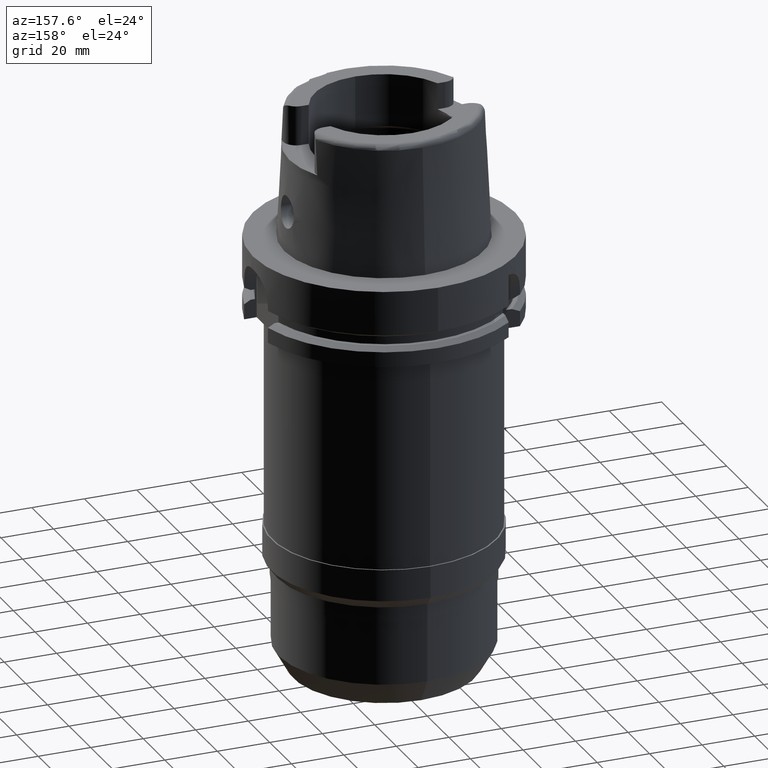
[diagram: clean part render]
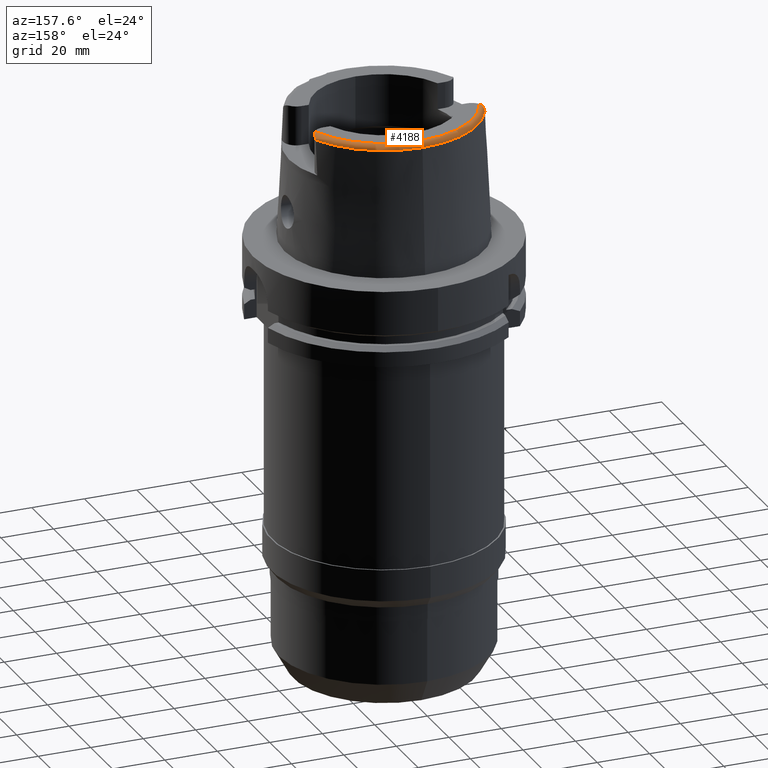
[diagram: same view with one face highlighted and labeled with its STEP entity id]
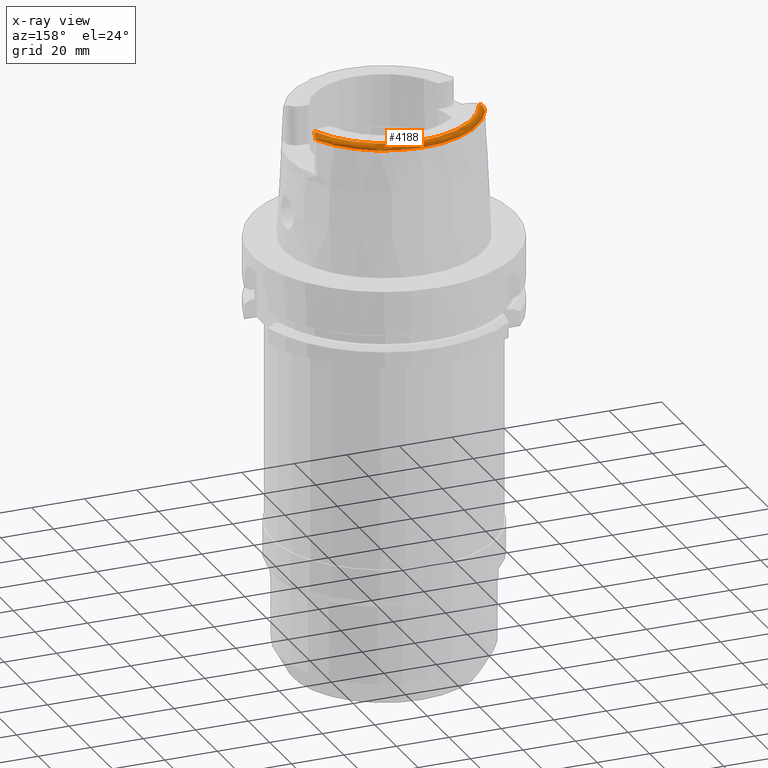
[diagram: x-ray of the same camera — body ghosted, the highlighted face saturated]
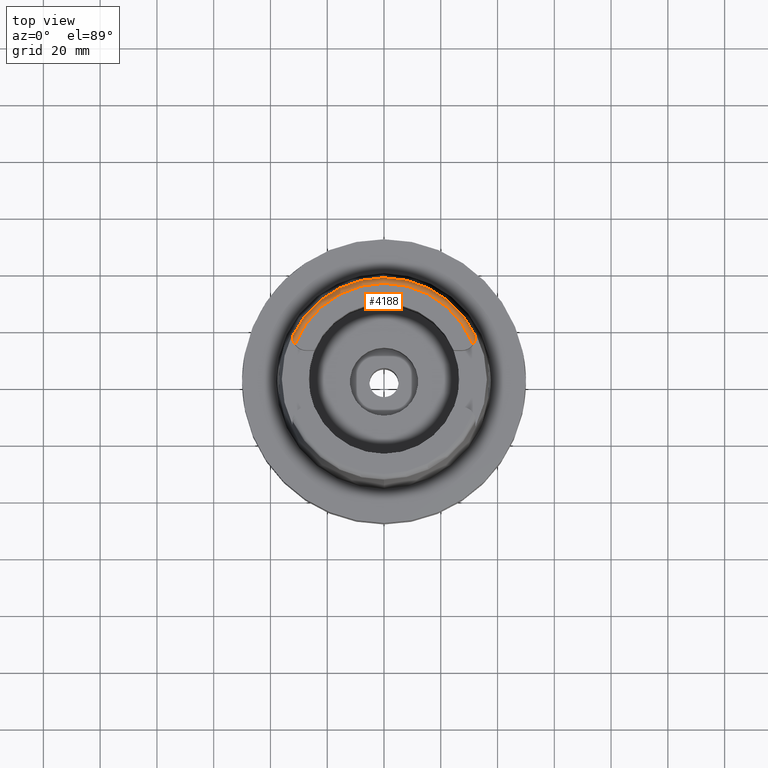
[diagram: same view with one face highlighted and labeled with its STEP entity id]
A machine part, auxiliary view. The second image highlights one B-rep face of the part: STEP entity #4188.
The next image is the same camera in x-ray: the body ghosted, the highlighted face saturated — about 0% of this face is hidden behind the body in this view.
A second angle (top view) of the same face is appended — the face is thin or edge-on in the first view.
In plain terms, the highlighted toroidal blend (fillet) surface has major radius 33.5974 mm and minor (blend) radius 2 mm.
Its self-contained STEP definition (entity closure, byte-faithful):
#26=CARTESIAN_POINT('',(0.E0,0.E0,5.E1));
#27=DIRECTION('',(0.E0,0.E0,-1.E0));
#28=DIRECTION('',(-9.332215253018E-1,3.593015233942E-1,0.E0));
#29=AXIS2_PLACEMENT_3D('',#26,#27,#28);
#2197=CARTESIAN_POINT('',(-3.135385269249E1,1.207161079257E1,5.E1));
#2198=CARTESIAN_POINT('',(-3.142527373241E1,1.217256594150E1,5.E1));
#2199=CARTESIAN_POINT('',(-3.156732839831E1,1.238900202558E1,4.998464011320E1));
#2200=CARTESIAN_POINT('',(-3.177577836674E1,1.277577168277E1,4.990203400659E1));
#2201=CARTESIAN_POINT('',(-3.194757711255E1,1.318051237673E1,4.976413906340E1));
#2202=CARTESIAN_POINT('',(-3.207547543607E1,1.357688175646E1,4.958506792855E1));
#2203=CARTESIAN_POINT('',(-3.215905840179E1,1.393206367770E1,4.938753791230E1));
#2204=CARTESIAN_POINT('',(-3.221007456356E1,1.424469792294E1,4.918012810564E1));
#2205=CARTESIAN_POINT('',(-3.223728010072E1,1.451082977256E1,4.896941221858E1));
#2206=CARTESIAN_POINT('',(-3.224870812954E1,1.473148457917E1,4.875544518115E1));
#2207=CARTESIAN_POINT('',(-3.225E1,1.484286946825E1,4.861561762388E1));
#2208=CARTESIAN_POINT('',(-3.225E1,1.489E1,4.854599893822E1));
#2213=CARTESIAN_POINT('',(-3.225E1,1.489E1,4.854599893822E1));
#2214=CARTESIAN_POINT('',(-3.225E1,1.492391070446E1,4.849590787015E1));
#2215=CARTESIAN_POINT('',(-3.225000018245E1,1.498154662327E1,4.839573492788E1));
#2216=CARTESIAN_POINT('',(-3.224999936141E1,1.503932663022E1,4.824459468441E1));
#2217=CARTESIAN_POINT('',(-3.225000136841E1,1.505879346357E1,4.814764670063E1));
#2218=CARTESIAN_POINT('',(-3.225000136841E1,1.506443228428E1,4.809991920216E1));
#2223=CARTESIAN_POINT('',(0.E0,0.E0,4.809987853799E1));
#2224=DIRECTION('',(0.E0,0.E0,-1.E0));
#2225=DIRECTION('',(-9.060276961631E-1,4.232183996300E-1,0.E0));
#2226=AXIS2_PLACEMENT_3D('',#2223,#2224,#2225);
#2231=CARTESIAN_POINT('',(0.E0,0.E0,4.809987853799E1));
#2232=DIRECTION('',(0.E0,0.E0,-1.E0));
#2233=DIRECTION('',(0.E0,1.E0,0.E0));
#2234=AXIS2_PLACEMENT_3D('',#2231,#2232,#2233);
#2239=CARTESIAN_POINT('',(3.224998031234E1,1.506460254567E1,4.809931725137E1));
#2240=CARTESIAN_POINT('',(3.224998031234E1,1.505854165592E1,4.815061718119E1));
#2241=CARTESIAN_POINT('',(3.225000918757E1,1.503762251559E1,4.825052466991E1));
#2242=CARTESIAN_POINT('',(3.224999737498E1,1.497890571301E1,4.840088297217E1));
#2243=CARTESIAN_POINT('',(3.225E1,1.492253334815E1,4.849794242677E1));
#2244=CARTESIAN_POINT('',(3.225E1,1.489E1,4.854599893822E1));
#2249=CARTESIAN_POINT('',(3.225E1,1.489E1,4.854599893822E1));
#2250=CARTESIAN_POINT('',(3.225E1,1.484233185018E1,4.861641176436E1));
#2251=CARTESIAN_POINT('',(3.224866856102E1,1.472996722080E1,4.875711873386E1));
#2252=CARTESIAN_POINT('',(3.223716116187E1,1.450947670278E1,4.897052517094E1));
#2253=CARTESIAN_POINT('',(3.221001481080E1,1.424440538915E1,4.918029657013E1));
#2254=CARTESIAN_POINT('',(3.215912569063E1,1.393243502662E1,4.938730610069E1));
#2255=CARTESIAN_POINT('',(3.207549520389E1,1.357682500555E1,4.958513807302E1));
#2256=CARTESIAN_POINT('',(3.194715096212E1,1.317937226786E1,4.976458971866E1));
#2257=CARTESIAN_POINT('',(3.177566687071E1,1.277559163315E1,4.990205725175E1));
#2258=CARTESIAN_POINT('',(3.156720344692E1,1.238878468162E1,4.998467660125E1));
#2259=CARTESIAN_POINT('',(3.142523426090E1,1.217251014770E1,5.E1));
#2260=CARTESIAN_POINT('',(3.135385269249E1,1.207161079257E1,5.E1));
#2266=CARTESIAN_POINT('',(-3.135385269249E1,1.207161079257E1,5.E1));
#2268=VERTEX_POINT('',#2266);
#2269=CARTESIAN_POINT('',(3.135385269249E1,1.207161079257E1,5.E1));
#2270=VERTEX_POINT('',#2269);
#2297=CARTESIAN_POINT('',(-3.225E1,1.489E1,4.854599893822E1));
#2298=VERTEX_POINT('',#2297);
#2316=VERTEX_POINT('',#2218);
#2317=CARTESIAN_POINT('',(0.E0,3.559494289391E1,4.809987853799E1));
#2318=VERTEX_POINT('',#2317);
#2319=CARTESIAN_POINT('',(3.224994093704E1,1.506456999646E1,4.809987853799E1));
#2320=VERTEX_POINT('',#2319);
#2321=VERTEX_POINT('',#2244);
#4172=CARTESIAN_POINT('',(0.E0,0.E0,4.8E1));
#4173=DIRECTION('',(0.E0,0.E0,1.E0));
#4174=DIRECTION('',(-4.184165975220E-4,-9.999999124638E-1,0.E0));
#4175=AXIS2_PLACEMENT_3D('',#4172,#4173,#4174);
#4176=TOROIDAL_SURFACE('',#4175,3.359743838136E1,2.E0);
#4177=ORIENTED_EDGE('',*,*,#2631,.T.);
#4179=ORIENTED_EDGE('',*,*,#4178,.T.);
#4180=ORIENTED_EDGE('',*,*,#2789,.T.);
#4181=ORIENTED_EDGE('',*,*,#2811,.T.);
#4183=ORIENTED_EDGE('',*,*,#4182,.T.);
#4184=ORIENTED_EDGE('',*,*,#4163,.T.);
#4185=ORIENTED_EDGE('',*,*,#2604,.F.);
#4186=EDGE_LOOP('',(#4177,#4179,#4180,#4181,#4183,#4184,#4185));
#4187=FACE_OUTER_BOUND('',#4186,.F.);
#30=CIRCLE('',#29,3.359743838136E1);
#2209=B_SPLINE_CURVE_WITH_KNOTS('',3,(#2197,#2198,#2199,#2200,#2201,#2202,#2203,
#2204,#2205,#2206,#2207,#2208),.UNSPECIFIED.,.F.,.F.,(4,1,1,1,1,1,1,1,1,4),
(0.E0,1.111111111111E-1,2.222222222222E-1,3.333333333333E-1,4.444444444444E-1,
5.555555555556E-1,6.666666666667E-1,7.777777777778E-1,8.888888888889E-1,1.E0),
.UNSPECIFIED.);
#2219=B_SPLINE_CURVE_WITH_KNOTS('',3,(#2213,#2214,#2215,#2216,#2217,#2218),
.UNSPECIFIED.,.F.,.F.,(4,1,1,4),(0.E0,3.333333333333E-1,6.666666666667E-1,1.E0),
.UNSPECIFIED.);
#2227=CIRCLE('',#2226,3.559494289391E1);
#2235=CIRCLE('',#2234,3.559494289391E1);
#2245=B_SPLINE_CURVE_WITH_KNOTS('',3,(#2239,#2240,#2241,#2242,#2243,#2244),
.UNSPECIFIED.,.F.,.F.,(4,1,1,4),(0.E0,3.333333333333E-1,6.666666666667E-1,1.E0),
.UNSPECIFIED.);
#2261=B_SPLINE_CURVE_WITH_KNOTS('',3,(#2249,#2250,#2251,#2252,#2253,#2254,#2255,
#2256,#2257,#2258,#2259,#2260),.UNSPECIFIED.,.F.,.F.,(4,1,1,1,1,1,1,1,1,4),
(0.E0,1.111111111111E-1,2.222222222222E-1,3.333333333333E-1,4.444444444444E-1,
5.555555555556E-1,6.666666666667E-1,7.777777777778E-1,8.888888888889E-1,1.E0),
.UNSPECIFIED.);
#2604=EDGE_CURVE('',#2268,#2270,#30,.T.);
#2631=EDGE_CURVE('',#2268,#2298,#2209,.T.);
#2789=EDGE_CURVE('',#2316,#2318,#2227,.T.);
#2811=EDGE_CURVE('',#2318,#2320,#2235,.T.);
#4163=EDGE_CURVE('',#2321,#2270,#2261,.T.);
#4178=EDGE_CURVE('',#2298,#2316,#2219,.T.);
#4182=EDGE_CURVE('',#2320,#2321,#2245,.T.);
#4188=ADVANCED_FACE('',(#4187),#4176,.T.);